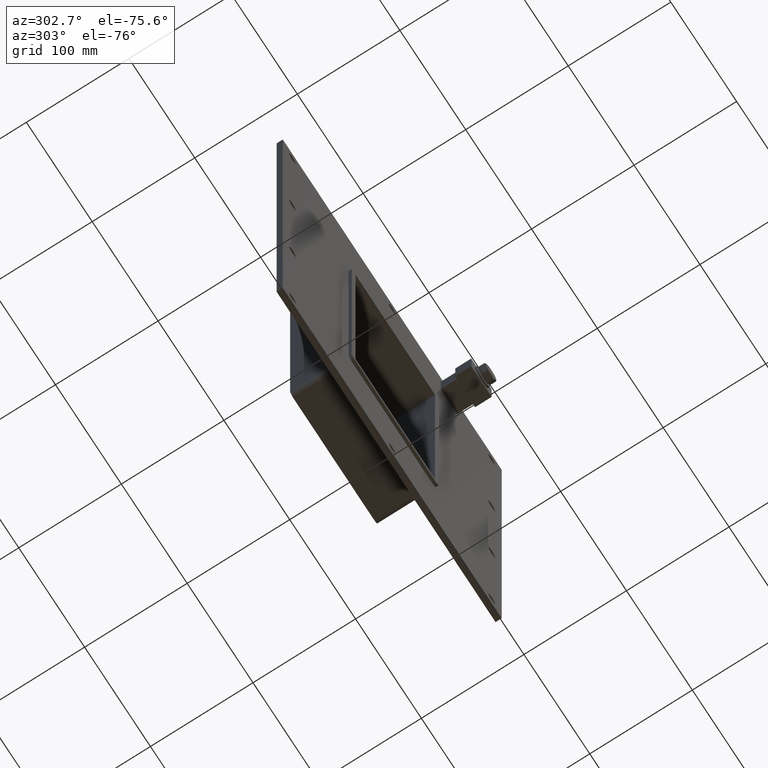
[diagram: clean part render]
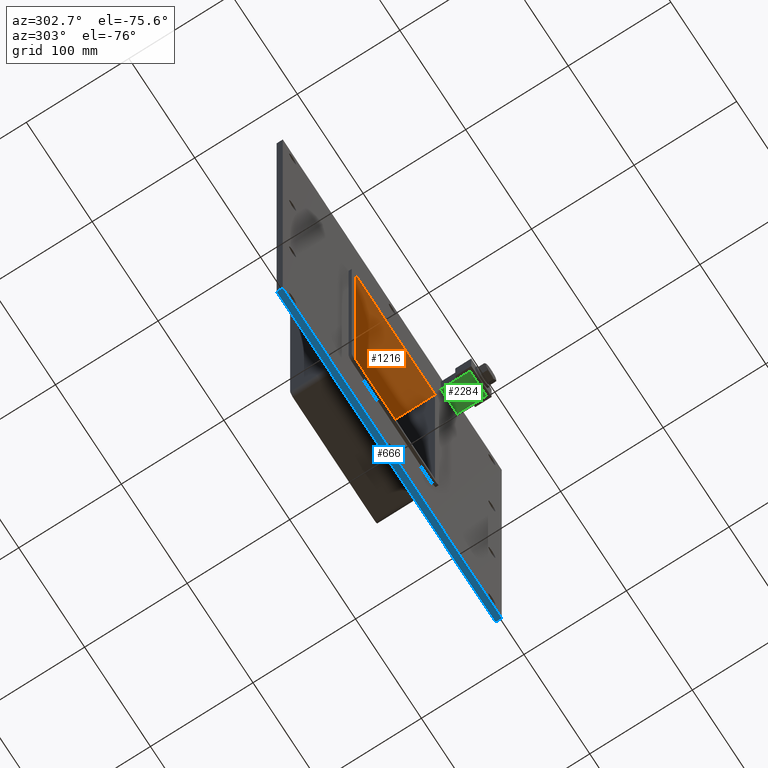
[diagram: same view with three faces highlighted in distinct colors, each labeled with its STEP entity id]
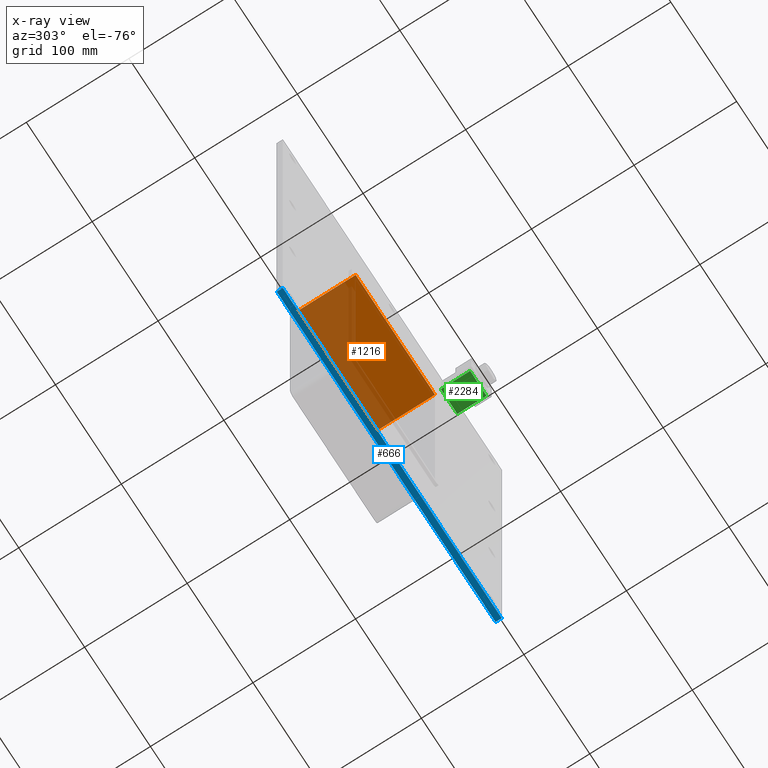
[diagram: x-ray of the same camera — body ghosted, the three highlighted faces saturated]
A machine part, auxiliary view with three faces highlighted in distinct colors.
The next image is the same camera in x-ray (body ghosted, the three faces saturated) — at least one of them is partly hidden behind the body in this view.
Their STEP definitions:

[orange] entity #1216 — the highlighted planar face has unit normal (0, 0, 1).
#711=CARTESIAN_POINT('',(-60.249999999999993,57.0,139.00000000000003));
#712=VERTEX_POINT('',#711);
#719=CARTESIAN_POINT('',(-60.249999999999993,-3.0,139.00000000000003));
#720=VERTEX_POINT('',#719);
#721=CARTESIAN_POINT('',(-60.249999999999993,-3.0,139.00000000000003));
#722=DIRECTION('',(0.0,1.0,0.0));
#723=VECTOR('',#722,60.0);
#724=LINE('',#721,#723);
#725=EDGE_CURVE('',#720,#712,#724,.T.);
#1052=CARTESIAN_POINT('',(60.249999999999993,-3.0,139.00000000000003));
#1053=VERTEX_POINT('',#1052);
#1069=CARTESIAN_POINT('',(-60.249999999999993,-3.0,139.00000000000003));
#1070=DIRECTION('',(1.0,0.0,0.0));
#1071=VECTOR('',#1070,120.5);
#1072=LINE('',#1069,#1071);
#1073=EDGE_CURVE('',#720,#1053,#1072,.T.);
#1183=CARTESIAN_POINT('',(60.249999999999993,57.0,139.00000000000003));
#1184=VERTEX_POINT('',#1183);
#1185=CARTESIAN_POINT('',(60.249999999999993,-3.0,139.00000000000003));
#1186=DIRECTION('',(0.0,1.0,0.0));
#1187=VECTOR('',#1186,60.0);
#1188=LINE('',#1185,#1187);
#1189=EDGE_CURVE('',#1053,#1184,#1188,.T.);
#1200=CARTESIAN_POINT('',(-60.249999999999993,0.0,139.00000000000003));
#1201=DIRECTION('',(0.0,0.0,1.0));
#1202=DIRECTION('',(1.0,0.0,0.0));
#1203=AXIS2_PLACEMENT_3D('',#1200,#1201,#1202);
#1204=PLANE('',#1203);
#1205=ORIENTED_EDGE('',*,*,#725,.T.);
#1206=CARTESIAN_POINT('',(60.25,57.0,139.00000000000003));
#1207=DIRECTION('',(-1.0,0.0,0.0));
#1208=VECTOR('',#1207,120.5);
#1209=LINE('',#1206,#1208);
#1210=EDGE_CURVE('',#1184,#712,#1209,.T.);
#1211=ORIENTED_EDGE('',*,*,#1210,.F.);
#1212=ORIENTED_EDGE('',*,*,#1189,.F.);
#1213=ORIENTED_EDGE('',*,*,#1073,.F.);
#1214=EDGE_LOOP('',(#1205,#1211,#1212,#1213));
#1215=FACE_OUTER_BOUND('',#1214,.T.);
#1216=ADVANCED_FACE('',(#1215),#1204,.F.);

[blue] entity #666 — the highlighted planar face has unit normal (0, 0, -1).
#363=CARTESIAN_POINT('',(166.25,6.000000000000001,-245.00000000000006));
#364=VERTEX_POINT('',#363);
#371=CARTESIAN_POINT('',(-166.25,6.000000000000001,-245.00000000000006));
#372=VERTEX_POINT('',#371);
#373=CARTESIAN_POINT('',(166.25,6.000000000000001,-245.00000000000006));
#374=DIRECTION('',(-1.0,0.0,0.0));
#375=VECTOR('',#374,332.5);
#376=LINE('',#373,#375);
#377=EDGE_CURVE('',#364,#372,#376,.T.);
#503=CARTESIAN_POINT('',(-166.25,0.0,-245.00000000000006));
#504=VERTEX_POINT('',#503);
#511=CARTESIAN_POINT('',(166.25,0.0,-245.00000000000006));
#512=VERTEX_POINT('',#511);
#513=CARTESIAN_POINT('',(166.25,0.0,-245.00000000000006));
#514=DIRECTION('',(-1.0,0.0,0.0));
#515=VECTOR('',#514,332.5);
#516=LINE('',#513,#515);
#517=EDGE_CURVE('',#512,#504,#516,.T.);
#641=CARTESIAN_POINT('',(-166.25,0.0,-245.00000000000006));
#642=DIRECTION('',(0.0,1.0,0.0));
#643=VECTOR('',#642,6.000000000000001);
#644=LINE('',#641,#643);
#645=EDGE_CURVE('',#504,#372,#644,.T.);
#650=CARTESIAN_POINT('',(166.25,0.0,-245.00000000000006));
#651=DIRECTION('',(0.0,0.0,-1.0));
#652=DIRECTION('',(-1.0,0.0,0.0));
#653=AXIS2_PLACEMENT_3D('',#650,#651,#652);
#654=PLANE('',#653);
#655=ORIENTED_EDGE('',*,*,#517,.T.);
#656=ORIENTED_EDGE('',*,*,#645,.T.);
#657=ORIENTED_EDGE('',*,*,#377,.F.);
#658=CARTESIAN_POINT('',(166.25,0.0,-245.00000000000006));
#659=DIRECTION('',(0.0,1.0,0.0));
#660=VECTOR('',#659,6.000000000000001);
#661=LINE('',#658,#660);
#662=EDGE_CURVE('',#512,#364,#661,.T.);
#663=ORIENTED_EDGE('',*,*,#662,.F.);
#664=EDGE_LOOP('',(#655,#656,#657,#663));
#665=FACE_OUTER_BOUND('',#664,.T.);
#666=ADVANCED_FACE('',(#665),#654,.T.);

[green] entity #2284 — the highlighted planar face has unit normal (0, 0, -1).
#2166=CARTESIAN_POINT('',(73.75,0.0,207.5));
#2167=VERTEX_POINT('',#2166);
#2176=CARTESIAN_POINT('',(73.75,-28.600000000000001,207.5));
#2177=VERTEX_POINT('',#2176);
#2178=CARTESIAN_POINT('',(73.75,0.0,207.5));
#2179=DIRECTION('',(0.0,-1.0,0.0));
#2180=VECTOR('',#2179,28.600000000000001);
#2181=LINE('',#2178,#2180);
#2182=EDGE_CURVE('',#2167,#2177,#2181,.T.);
#2237=CARTESIAN_POINT('',(98.75,0.0,207.5));
#2238=VERTEX_POINT('',#2237);
#2246=CARTESIAN_POINT('',(98.75,-28.600000000000001,207.5));
#2247=VERTEX_POINT('',#2246);
#2254=CARTESIAN_POINT('',(98.75,0.0,207.5));
#2255=DIRECTION('',(0.0,-1.0,0.0));
#2256=VECTOR('',#2255,28.600000000000001);
#2257=LINE('',#2254,#2256);
#2258=EDGE_CURVE('',#2238,#2247,#2257,.T.);
#2263=CARTESIAN_POINT('',(73.75,0.0,207.5));
#2264=DIRECTION('',(0.0,0.0,-1.0));
#2265=DIRECTION('',(1.0,0.0,0.0));
#2266=AXIS2_PLACEMENT_3D('',#2263,#2264,#2265);
#2267=PLANE('',#2266);
#2268=CARTESIAN_POINT('',(98.75,0.0,207.5));
#2269=DIRECTION('',(-1.0,0.0,0.0));
#2270=VECTOR('',#2269,25.0);
#2271=LINE('',#2268,#2270);
#2272=EDGE_CURVE('',#2238,#2167,#2271,.T.);
#2273=ORIENTED_EDGE('',*,*,#2272,.F.);
#2274=ORIENTED_EDGE('',*,*,#2258,.T.);
#2275=CARTESIAN_POINT('',(73.75,-28.600000000000001,207.5));
#2276=DIRECTION('',(1.0,0.0,0.0));
#2277=VECTOR('',#2276,25.0);
#2278=LINE('',#2275,#2277);
#2279=EDGE_CURVE('',#2177,#2247,#2278,.T.);
#2280=ORIENTED_EDGE('',*,*,#2279,.F.);
#2281=ORIENTED_EDGE('',*,*,#2182,.F.);
#2282=EDGE_LOOP('',(#2273,#2274,#2280,#2281));
#2283=FACE_OUTER_BOUND('',#2282,.T.);
#2284=ADVANCED_FACE('',(#2283),#2267,.T.);